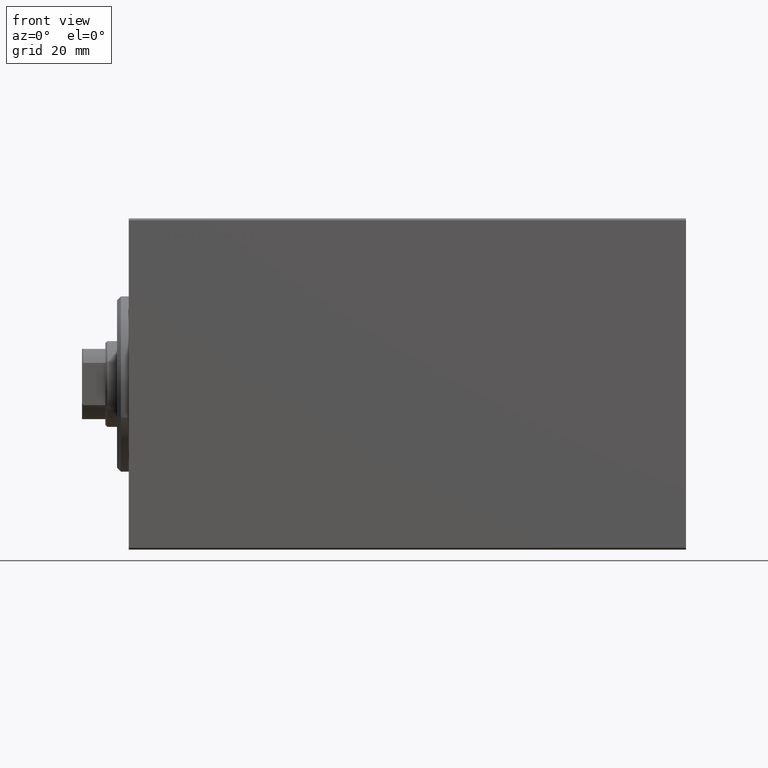
[diagram: clean part render]
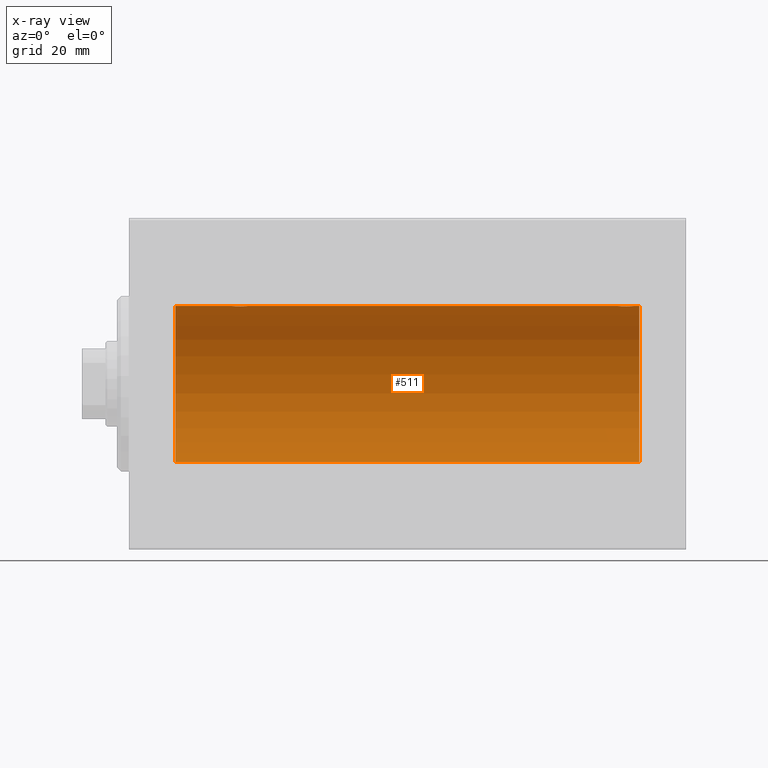
[diagram: x-ray — body ghosted, one internal face saturated and labeled with its STEP entity id]
A machine part, front view, then the same camera in x-ray: the body is ghosted and one INTERNAL B-rep face — a face not visible from any outside direction — is saturated and labeled: STEP entity #511.
In plain terms, the highlighted cylindrical surface (partial cylindrical patch) has radius 20 mm, axis along (-1, -0, -0).
Its self-contained STEP definition (entity closure, byte-faithful):
#511 = ADVANCED_FACE ( 'NONE', ( #1982 ), #15554, .F. ) ;
#531 = ORIENTED_EDGE ( 'NONE', *, *, #1950, .T. ) ;
#616 = CARTESIAN_POINT ( 'NONE',  ( 28.37018818709294266, 2.000047251570880924, 19.89974399317116038 ) ) ;
#815 = VERTEX_POINT ( 'NONE', #30107 ) ;
#1455 = VECTOR ( 'NONE', #21240, 1000.000000000000000 ) ;
#1516 = CARTESIAN_POINT ( 'NONE',  ( 125.5642685113271000, 0.5196544277756655061, 19.99365919015135518 ) ) ;
#1847 = CARTESIAN_POINT ( 'NONE',  ( 131.0000000000000000, 0.000000000000000000, 20.00000000000000000 ) ) ;
#1950 = EDGE_CURVE ( 'NONE', #3040, #14187, #31239, .T. ) ;
#1967 = CARTESIAN_POINT ( 'NONE',  ( 125.9099293231032419, 1.220099331833881973, 19.96304379627741099 ) ) ;
#1982 = FACE_OUTER_BOUND ( 'NONE', #17866, .T. ) ;
#3040 = VERTEX_POINT ( 'NONE', #1847 ) ;
#3982 = CARTESIAN_POINT ( 'NONE',  ( 129.5000000000000000, 6.438096668033870730E-15, 20.00000000000000000 ) ) ;
#4628 = CARTESIAN_POINT ( 'NONE',  ( 26.56426851132708222, 0.5196544277756667274, 19.99365919015135873 ) ) ;
#4762 = VERTEX_POINT ( 'NONE', #15581 ) ;
#4877 = CARTESIAN_POINT ( 'NONE',  ( 131.0000000000000000, 0.000000000000000000, 0.000000000000000000 ) ) ;
#5069 = CARTESIAN_POINT ( 'NONE',  ( 28.23758582179998911, 1.987020435121066742, 19.90106552791689509 ) ) ;
#5311 = CARTESIAN_POINT ( 'NONE',  ( 127.2375858217999820, 1.987020435121064965, 19.90106552791689154 ) ) ;
#5760 = CARTESIAN_POINT ( 'NONE',  ( 127.7618015389743960, 1.999905101582715172, 19.89975827978156886 ) ) ;
#6699 = DIRECTION ( 'NONE',  ( 0.000000000000000000, 0.000000000000000000, 1.000000000000000000 ) ) ;
#6845 = ORIENTED_EDGE ( 'NONE', *, *, #17533, .T. ) ;
#6871 = LINE ( 'NONE', #31068, #42858 ) ;
#7730 = CARTESIAN_POINT ( 'NONE',  ( 29.50645759073829666, 1.747830109444738822, 19.92373272380676852 ) ) ;
#7955 = CARTESIAN_POINT ( 'NONE',  ( 26.90992932310326680, 1.220099331833893963, 19.96304379627741099 ) ) ;
#10097 = ORIENTED_EDGE ( 'NONE', *, *, #21020, .T. ) ;
#10142 = ORIENTED_EDGE ( 'NONE', *, *, #30121, .F. ) ;
#10251 = CARTESIAN_POINT ( 'NONE',  ( 30.50000000000000000, -9.453669475664189070E-16, 20.00000000000000000 ) ) ;
#10266 = B_SPLINE_CURVE_WITH_KNOTS ( 'NONE', 3,
 ( #3982, #17328, #14419, #27546, #41109, #10650, #17536, #34640, #17756, #24639, #18879, #21761, #5760, #42666, #5311, #15318, #39766, #11978, #32878, #38866, #35764, #28865, #1967, #11748, #29317, #32428, #1516, #22659, #21988, #25991 ),
 .UNSPECIFIED., .F., .F.,
 ( 4, 2, 2, 2, 2, 2, 2, 2, 2, 2, 2, 2, 2, 2, 4 ),
 ( 6.256030733202064911E-18, 0.0003910512220831412178, 0.0007821024441662762557, 0.001173153666249411239, 0.001564204888332546223, 0.002346307332498815974, 0.003128409776665085941, 0.003519460998748179508, 0.003910512220831273075, 0.004301563442914366209, 0.004692614664997459342, 0.005083665887080552476, 0.005474717109163646477, 0.005865768331246739610, 0.006256819553329832743 ),
 .UNSPECIFIED. ) ;
#10545 = CARTESIAN_POINT ( 'NONE',  ( 131.0000000000000000, 0.000000000000000000, 20.00000000000000000 ) ) ;
#10650 = CARTESIAN_POINT ( 'NONE',  ( 129.2972134305669556, 0.8872481584516725972, 19.98067755938510714 ) ) ;
#11067 = CARTESIAN_POINT ( 'NONE',  ( 26.76510545398016205, 1.003547732426802286, 19.97510079925437765 ) ) ;
#11748 = CARTESIAN_POINT ( 'NONE',  ( 125.7651054539801407, 1.003547732426790073, 19.97510079925437410 ) ) ;
#11809 = VERTEX_POINT ( 'NONE', #17373 ) ;
#11978 = CARTESIAN_POINT ( 'NONE',  ( 126.6140381054416366, 1.797847595792759323, 19.91909332229798224 ) ) ;
#12436 = DIRECTION ( 'NONE',  ( -1.000000000000000000, -0.000000000000000000, -0.000000000000000000 ) ) ;
#12548 = ORIENTED_EDGE ( 'NONE', *, *, #15881, .T. ) ;
#12904 = B_SPLINE_CURVE_WITH_KNOTS ( 'NONE', 3,
 ( #40079, #19853, #33402, #36959, #38184, #31959, #38405, #14186, #17962, #35522, #7730, #37971, #21074, #616, #5069, #21298, #15074, #31518, #17741, #27741, #18191, #34625, #7955, #11067, #18413, #35075, #4628, #34852, #21970, #21521 ),
 .UNSPECIFIED., .F., .F.,
 ( 4, 2, 2, 2, 2, 2, 2, 2, 2, 2, 2, 2, 2, 2, 4 ),
 ( 1.491064056086547960E-18, 0.0003910512220831125949, 0.0007821024441662236719, 0.001173153666249334695, 0.001564204888332445826, 0.002346307332498667655, 0.003128409776664889917, 0.003519460998748006036, 0.003910512220831123022, 0.004301563442914238707, 0.004692614664997354391, 0.005083665887080470944, 0.005474717109163585761, 0.005865768331246702313, 0.006256819553329818866 ),
 .UNSPECIFIED. ) ;
#13666 = EDGE_CURVE ( 'NONE', #3040, #815, #28287, .T. ) ;
#14186 = CARTESIAN_POINT ( 'NONE',  ( 30.09059733457551999, 1.219458756546268674, 19.96308513509966787 ) ) ;
#14187 = VERTEX_POINT ( 'NONE', #30966 ) ;
#14270 = VERTEX_POINT ( 'NONE', #38734 ) ;
#14419 = CARTESIAN_POINT ( 'NONE',  ( 129.4870149461532378, 0.2622407139811161469, 19.99868965376115071 ) ) ;
#15074 = CARTESIAN_POINT ( 'NONE',  ( 27.85628869360149906, 1.898109641280498083, 19.90978941500367583 ) ) ;
#15318 = CARTESIAN_POINT ( 'NONE',  ( 126.9810052581388788, 1.935912154109689531, 19.90610216711451130 ) ) ;
#15554 = CYLINDRICAL_SURFACE ( 'NONE', #43346, 20.00000000000000000 ) ;
#15581 = CARTESIAN_POINT ( 'NONE',  ( 125.5000000000000000, -1.553188236289650144E-23, 20.00000000000000000 ) ) ;
#15881 = EDGE_CURVE ( 'NONE', #14187, #4762, #10266, .T. ) ;
#15893 = VERTEX_POINT ( 'NONE', #39099 ) ;
#16716 = CARTESIAN_POINT ( 'NONE',  ( 131.0000000000000000, 0.000000000000000000, 0.000000000000000000 ) ) ;
#17328 = CARTESIAN_POINT ( 'NONE',  ( 129.4999999999999432, 0.1322335637814731624, 19.99999999999999645 ) ) ;
#17373 = CARTESIAN_POINT ( 'NONE',  ( 26.50000000000000355, -1.552596590610734385E-23, 20.00000000000000000 ) ) ;
#17533 = EDGE_CURVE ( 'NONE', #11809, #15893, #30017, .T. ) ;
#17536 = CARTESIAN_POINT ( 'NONE',  ( 129.2357636512789725, 1.002099838626312023, 19.97517568592526516 ) ) ;
#17741 = CARTESIAN_POINT ( 'NONE',  ( 27.49702773215046392, 1.735228749583825225, 19.92471474456649005 ) ) ;
#17756 = CARTESIAN_POINT ( 'NONE',  ( 129.0061577038071334, 1.322305185229299740, 19.95645382900617548 ) ) ;
#17866 = EDGE_LOOP ( 'NONE', ( #10142, #28085, #531, #12548, #42108, #42279, #6845, #10097 ) ) ;
#17962 = CARTESIAN_POINT ( 'NONE',  ( 30.00615770380712988, 1.322305185229305735, 19.95645382900617548 ) ) ;
#18191 = CARTESIAN_POINT ( 'NONE',  ( 27.17939834916166575, 1.507796451871720844, 19.94330239452387943 ) ) ;
#18413 = CARTESIAN_POINT ( 'NONE',  ( 26.70246098872837592, 0.8865903856744279388, 19.98070694681038972 ) ) ;
#18879 = CARTESIAN_POINT ( 'NONE',  ( 128.5064575907383357, 1.747830109444734159, 19.92373272380677207 ) ) ;
#19369 = DIRECTION ( 'NONE',  ( -1.000000000000000000, -0.000000000000000000, -0.000000000000000000 ) ) ;
#19853 = CARTESIAN_POINT ( 'NONE',  ( 30.49999999999998934, 0.1322335637814726905, 19.99999999999999645 ) ) ;
#20436 = DIRECTION ( 'NONE',  ( -1.000000000000000000, -0.000000000000000000, -0.000000000000000000 ) ) ;
#21020 = EDGE_CURVE ( 'NONE', #15893, #14270, #34166, .T. ) ;
#21074 = CARTESIAN_POINT ( 'NONE',  ( 28.76180153897438174, 1.999905101582716727, 19.89975827978156531 ) ) ;
#21240 = DIRECTION ( 'NONE',  ( -1.000000000000000000, -0.000000000000000000, -0.000000000000000000 ) ) ;
#21298 = CARTESIAN_POINT ( 'NONE',  ( 27.98100525813890371, 1.935912154109691308, 19.90610216711450775 ) ) ;
#21521 = CARTESIAN_POINT ( 'NONE',  ( 26.50000000000000355, -1.552596590610734385E-23, 20.00000000000000000 ) ) ;
#21761 = CARTESIAN_POINT ( 'NONE',  ( 128.0251390845499770, 1.947330458682945409, 19.90522393307485061 ) ) ;
#21970 = CARTESIAN_POINT ( 'NONE',  ( 26.50000000000000711, 0.1305706983324430859, 20.00000000000000355 ) ) ;
#21988 = CARTESIAN_POINT ( 'NONE',  ( 125.4999999999999432, 0.1305706983324443071, 19.99999999999999645 ) ) ;
#22659 = CARTESIAN_POINT ( 'NONE',  ( 125.5130870798855369, 0.2631998640366421394, 19.99867931558985745 ) ) ;
#22901 = VECTOR ( 'NONE', #41650, 1000.000000000000000 ) ;
#23752 = EDGE_CURVE ( 'NONE', #4762, #29042, #34110, .T. ) ;
#24242 = AXIS2_PLACEMENT_3D ( 'NONE', #26880, #33538, #43783 ) ;
#24639 = CARTESIAN_POINT ( 'NONE',  ( 128.7295011223063170, 1.598854313793174997, 19.93684595445884611 ) ) ;
#25780 = DIRECTION ( 'NONE',  ( 0.000000000000000000, 0.000000000000000000, 1.000000000000000000 ) ) ;
#25991 = CARTESIAN_POINT ( 'NONE',  ( 125.5000000000000000, -1.553188236289650144E-23, 20.00000000000000000 ) ) ;
#26880 = CARTESIAN_POINT ( 'NONE',  ( 11.99999999999999645, 0.000000000000000000, 0.000000000000000000 ) ) ;
#27546 = CARTESIAN_POINT ( 'NONE',  ( 129.4361522838333087, 0.5179893069484673429, 19.99370013622814923 ) ) ;
#27741 = CARTESIAN_POINT ( 'NONE',  ( 27.28039724650257014, 1.590453176650910017, 19.93679350243183990 ) ) ;
#28085 = ORIENTED_EDGE ( 'NONE', *, *, #13666, .F. ) ;
#28287 = CIRCLE ( 'NONE', #38224, 20.00000000000000000 ) ;
#28865 = CARTESIAN_POINT ( 'NONE',  ( 125.9926135845601323, 1.321069663197669497, 19.95654117037011943 ) ) ;
#29042 = VERTEX_POINT ( 'NONE', #10251 ) ;
#29317 = CARTESIAN_POINT ( 'NONE',  ( 125.7024609887283901, 0.8865903856744312694, 19.98070694681039328 ) ) ;
#30017 = LINE ( 'NONE', #36696, #30534 ) ;
#30107 = CARTESIAN_POINT ( 'NONE',  ( 131.0000000000000000, 2.449293598294706513E-15, -20.00000000000000000 ) ) ;
#30121 = EDGE_CURVE ( 'NONE', #815, #14270, #6871, .T. ) ;
#30263 = DIRECTION ( 'NONE',  ( -1.000000000000000000, 0.000000000000000000, 0.000000000000000000 ) ) ;
#30534 = VECTOR ( 'NONE', #19369, 1000.000000000000000 ) ;
#30966 = CARTESIAN_POINT ( 'NONE',  ( 129.5000000000000000, 6.438096668033870730E-15, 20.00000000000000000 ) ) ;
#31068 = CARTESIAN_POINT ( 'NONE',  ( 131.0000000000000000, 2.449293598294706513E-15, -20.00000000000000000 ) ) ;
#31239 = LINE ( 'NONE', #38129, #1455 ) ;
#31518 = CARTESIAN_POINT ( 'NONE',  ( 27.61403810544162951, 1.797847595792757769, 19.91909332229799290 ) ) ;
#31959 = CARTESIAN_POINT ( 'NONE',  ( 30.29721343056696270, 0.8872481584516728192, 19.98067755938509293 ) ) ;
#32428 = CARTESIAN_POINT ( 'NONE',  ( 125.6021031264113503, 0.6443418861413128251, 19.98998539619404724 ) ) ;
#32878 = CARTESIAN_POINT ( 'NONE',  ( 126.4970277321504568, 1.735228749583813679, 19.92471474456649005 ) ) ;
#33161 = EDGE_CURVE ( 'NONE', #29042, #11809, #12904, .T. ) ;
#33402 = CARTESIAN_POINT ( 'NONE',  ( 30.48701494615325203, 0.2622407139811110399, 19.99868965376114716 ) ) ;
#33538 = DIRECTION ( 'NONE',  ( -1.000000000000000000, 0.000000000000000000, 0.000000000000000000 ) ) ;
#34110 = LINE ( 'NONE', #10545, #22901 ) ;
#34166 = CIRCLE ( 'NONE', #24242, 20.00000000000000000 ) ;
#34625 = CARTESIAN_POINT ( 'NONE',  ( 26.99261358456011806, 1.321069663197663724, 19.95654117037012298 ) ) ;
#34640 = CARTESIAN_POINT ( 'NONE',  ( 129.0905973345755626, 1.219458756546266898, 19.96308513509966787 ) ) ;
#34852 = CARTESIAN_POINT ( 'NONE',  ( 26.51308707988552982, 0.2631998640366418063, 19.99867931558985745 ) ) ;
#35075 = CARTESIAN_POINT ( 'NONE',  ( 26.60210312641135033, 0.6443418861413088283, 19.98998539619404724 ) ) ;
#35522 = CARTESIAN_POINT ( 'NONE',  ( 29.72950112230633124, 1.598854313793179660, 19.93684595445884256 ) ) ;
#35764 = CARTESIAN_POINT ( 'NONE',  ( 126.1793983491617013, 1.507796451871725063, 19.94330239452387588 ) ) ;
#36696 = CARTESIAN_POINT ( 'NONE',  ( 131.0000000000000000, 0.000000000000000000, 20.00000000000000000 ) ) ;
#36959 = CARTESIAN_POINT ( 'NONE',  ( 30.43615228383326610, 0.5179893069484617918, 19.99370013622814213 ) ) ;
#37971 = CARTESIAN_POINT ( 'NONE',  ( 29.02513908454999125, 1.947330458682948739, 19.90522393307485061 ) ) ;
#38129 = CARTESIAN_POINT ( 'NONE',  ( 131.0000000000000000, 0.000000000000000000, 20.00000000000000000 ) ) ;
#38184 = CARTESIAN_POINT ( 'NONE',  ( 30.39765113166074073, 0.6450624715427593081, 19.98996196681220283 ) ) ;
#38224 = AXIS2_PLACEMENT_3D ( 'NONE', #16716, #30263, #6699 ) ;
#38405 = CARTESIAN_POINT ( 'NONE',  ( 30.23576365127895471, 1.002099838626313133, 19.97517568592526516 ) ) ;
#38734 = CARTESIAN_POINT ( 'NONE',  ( 11.99999999999999645, 2.449293598294706513E-15, -20.00000000000000000 ) ) ;
#38866 = CARTESIAN_POINT ( 'NONE',  ( 126.2803972465025879, 1.590453176650897360, 19.93679350243184700 ) ) ;
#39099 = CARTESIAN_POINT ( 'NONE',  ( 11.99999999999999645, 0.000000000000000000, 20.00000000000000000 ) ) ;
#39766 = CARTESIAN_POINT ( 'NONE',  ( 126.8562886936015275, 1.898109641280497417, 19.90978941500366872 ) ) ;
#40079 = CARTESIAN_POINT ( 'NONE',  ( 30.50000000000000000, -9.453669475664189070E-16, 20.00000000000000000 ) ) ;
#41109 = CARTESIAN_POINT ( 'NONE',  ( 129.3976511316607798, 0.6450624715427597522, 19.98996196681220994 ) ) ;
#41650 = DIRECTION ( 'NONE',  ( -1.000000000000000000, -0.000000000000000000, -0.000000000000000000 ) ) ;
#42108 = ORIENTED_EDGE ( 'NONE', *, *, #23752, .T. ) ;
#42279 = ORIENTED_EDGE ( 'NONE', *, *, #33161, .T. ) ;
#42666 = CARTESIAN_POINT ( 'NONE',  ( 127.3701881870929213, 2.000047251570877371, 19.89974399317116038 ) ) ;
#42858 = VECTOR ( 'NONE', #20436, 1000.000000000000000 ) ;
#43346 = AXIS2_PLACEMENT_3D ( 'NONE', #4877, #12436, #25780 ) ;
#43783 = DIRECTION ( 'NONE',  ( 0.000000000000000000, 0.000000000000000000, 1.000000000000000000 ) ) ;